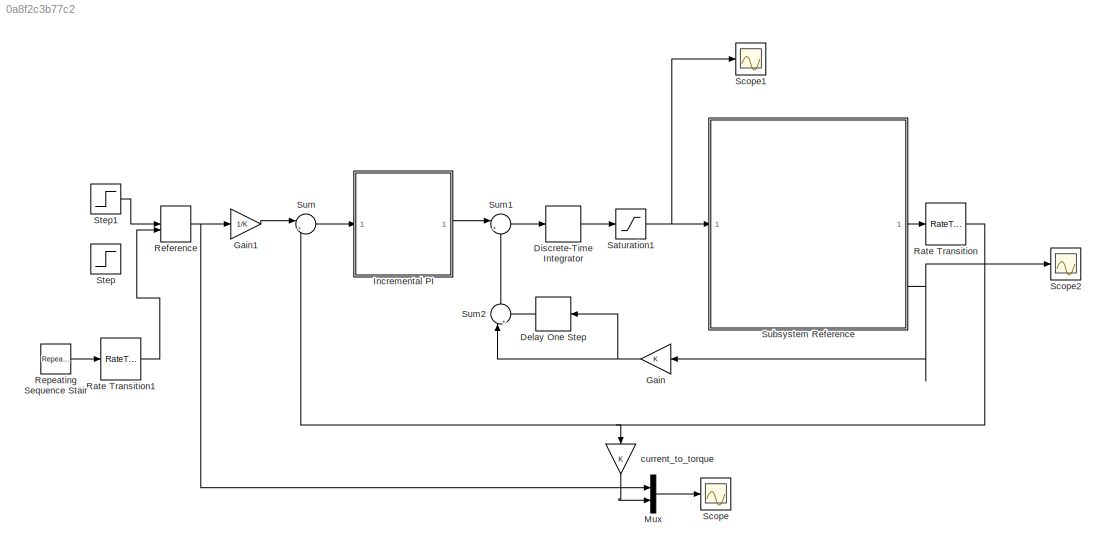
MODEL slx_0a8f2c3b77c2
KIND model
CONFIG AbsTol = auto
CONFIG EnableMultiTasking = on
CONFIG FixedStep = auto
CONFIG MaxStep = auto
CONFIG MinStep = auto
CONFIG RelTol = 1e-5
CONFIG SampleTimeConstraint = Unconstrained
CONFIG SolverName = FixedStepAuto
CONFIG StartTime = 0.0
CONFIG StopTime = 12
BLOCK [Delay] Delay One Step
  DelayLength = 1
  InputPortMap = u0
  NameLocation = top
BLOCK [DiscreteIntegrator] Discrete-Time Integrator
  ICPrevOutput = DiscIntNeverNeededParam
  ICPrevScaledInput = DiscIntNeverNeededParam
  InitialConditionSetting = Auto
  IntegratorMethod = Accumulation: Backward Euler
  LimitOutput = on
  LowerSaturationLimit = -12
  SampleTime = -1
  UpperSaturationLimit = 12
BLOCK [Gain] Gain
  Gain = K
  NameLocation = top
BLOCK [Gain] Gain1
  Gain = 1/K
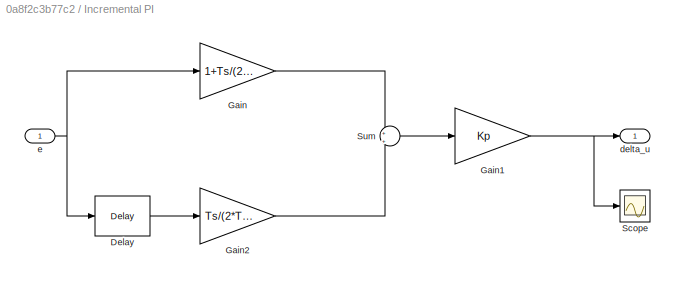
BLOCK [SubSystem] Incremental PI
BLOCK [Delay] Incremental PI/Delay
  DelayLength = 1
  InitialCondition = 0
  InputPortMap = u0
  UseCircularBuffer = on
  UserDataPersistent = on
BLOCK [Gain] Incremental PI/Gain
  Gain = 1+Ts/(2*Ti)
BLOCK [Gain] Incremental PI/Gain1
  Gain = Kp
BLOCK [Gain] Incremental PI/Gain2
  Gain = Ts/(2*Ti)-1
BLOCK [Scope] Incremental PI/Scope
  Floating = off
  NumInputPorts = 1
  ScopeSpecificationString = Simulink.scopes.TimeScopeBlockCfg('CurrentConfiguration', extmgr.ConfigurationSet(extmgr.Configuration('Core','General UI',true),extmgr.Configuration('Core','Source UI',true),extmgr.Configuration('Sources','WiredSimulink',true,'DataLoggingVariableName','ScopeData1'),extmgr.Configuration('Visuals','Time Domain',true,'SerializedDisplays',{struct('MinYLimReal','-0.01199','MaxYLimReal','0.09242','YLab...<+1435ch>
BLOCK [Sum] Incremental PI/Sum
  Inputs = +|+
BLOCK [Outport] Incremental PI/delta_u
  SampleTime = Ts
BLOCK [Inport] Incremental PI/e
  SampleTime = Ts
BLOCK [Mux] Mux
  DisplayOption = bar
  Inputs = 2
BLOCK [RateTransition] Rate Transition
  OutPortSampleTime = Ts
BLOCK [RateTransition] Rate Transition1
BLOCK [ManualSwitch] Reference
BLOCK [Reference] Repeating Sequence Stair  REF=simulink/Sources/Repeating
Sequence
Stair
  SourceBlock = simulink/Sources/Repeating\nSequence\nStair
  SourceType = Repeating Sequence Stair
BLOCK [Saturate] Saturation1
  LowerLimit = -12
  UpperLimit = 12
BLOCK [Scope] Scope
  Floating = off
  NumInputPorts = 1
  ScopeSpecificationString = Simulink.scopes.TimeScopeBlockCfg('CurrentConfiguration', extmgr.ConfigurationSet(extmgr.Configuration('Core','General UI',true),extmgr.Configuration('Core','Source UI',true),extmgr.Configuration('Sources','WiredSimulink',true),extmgr.Configuration('Visuals','Time Domain',true,'SerializedDisplays',{struct('MinYLimReal','-0.12527','MaxYLimReal','1.12568','YLabelReal','','MinYLimMag','0.00000','MaxY...<+1424ch>
BLOCK [Scope] Scope1
  Floating = off
  NumInputPorts = 1
  ScopeSpecificationString = Simulink.scopes.TimeScopeBlockCfg('CurrentConfiguration', extmgr.ConfigurationSet(extmgr.Configuration('Core','General UI',true),extmgr.Configuration('Core','Source UI',true),extmgr.Configuration('Sources','WiredSimulink',true,'DataLoggingVariableName','ScopeData1'),extmgr.Configuration('Visuals','Time Domain',true,'SerializedDisplays',{struct('MinYLimReal','-1.25775','MaxYLimReal','13.47308','YLa...<+1474ch>
BLOCK [Scope] Scope2
  Floating = off
  NumInputPorts = 1
  ScopeSpecificationString = Simulink.scopes.TimeScopeBlockCfg('CurrentConfiguration', extmgr.ConfigurationSet(extmgr.Configuration('Core','General UI',true),extmgr.Configuration('Core','Source UI',true),extmgr.Configuration('Sources','WiredSimulink',true,'DataLoggingVariableName','ScopeData2'),extmgr.Configuration('Visuals','Time Domain',true,'SerializedDisplays',{struct('MinYLimReal','-1.07723','MaxYLimReal','9.69507','YLab...<+1480ch>
BLOCK [Step] Step
  After = 0
  Before = 0.5
  SampleTime = Ts
  Time = 2
BLOCK [Step] Step1
  After = 0.15
  SampleTime = Ts
  Time = 0
BLOCK [SubSystem] Subsystem Reference
  ReferencedSubsystem = pololu_37D_hardware_interface
  Ts = Ts
  pwmFreq = 2000
BLOCK [Sum] Sum
  Inputs = |+-
BLOCK [Sum] Sum1
  Inputs = |++
BLOCK [Sum] Sum2
  Inputs = |+-
  NameLocation = right
BLOCK [Gain] current_to_torque
  Gain = K
  NameLocation = left
LINE Delay One Step:1 -> Sum2:2
LINE Discrete-Time Integrator:1 -> Saturation1:1
LINE Gain1:1 -> Sum:1
NET Gain:1 -> Delay One Step:1, Sum2:1
LINE Incremental PI/Delay:1 -> Incremental PI/Gain2:1
NET Incremental PI/Gain1:1 -> Incremental PI/Scope:1, Incremental PI/delta_u:1
LINE Incremental PI/Gain2:1 -> Incremental PI/Sum:2
LINE Incremental PI/Gain:1 -> Incremental PI/Sum:1
LINE Incremental PI/Sum:1 -> Incremental PI/Gain1:1
NET Incremental PI/e:1 -> Incremental PI/Delay:1, Incremental PI/Gain:1
LINE Incremental PI:1 -> Sum1:1
LINE Mux:1 -> Scope:1
LINE Rate Transition1:1 -> Reference:2
NET Rate Transition:1 -> Sum:2, current_to_torque:1
NET Reference:1 -> Gain1:1, Mux:1
LINE Repeating Sequence Stair:1 -> Rate Transition1:1
NET Saturation1:1 -> Scope1:1, Subsystem Reference:1
LINE Step1:1 -> Reference:1
LINE Subsystem Reference:3 -> Rate Transition:1
NET Subsystem Reference:4 -> Gain:1, Scope2:1
LINE Sum1:1 -> Discrete-Time Integrator:1
LINE Sum2:1 -> Sum1:2
LINE Sum:1 -> Incremental PI:1
LINE current_to_torque:1 -> Mux:2
note: NET lines group one-source signal fan-out (src -> all destinations, sorted); 1:1 wires keep LINE
